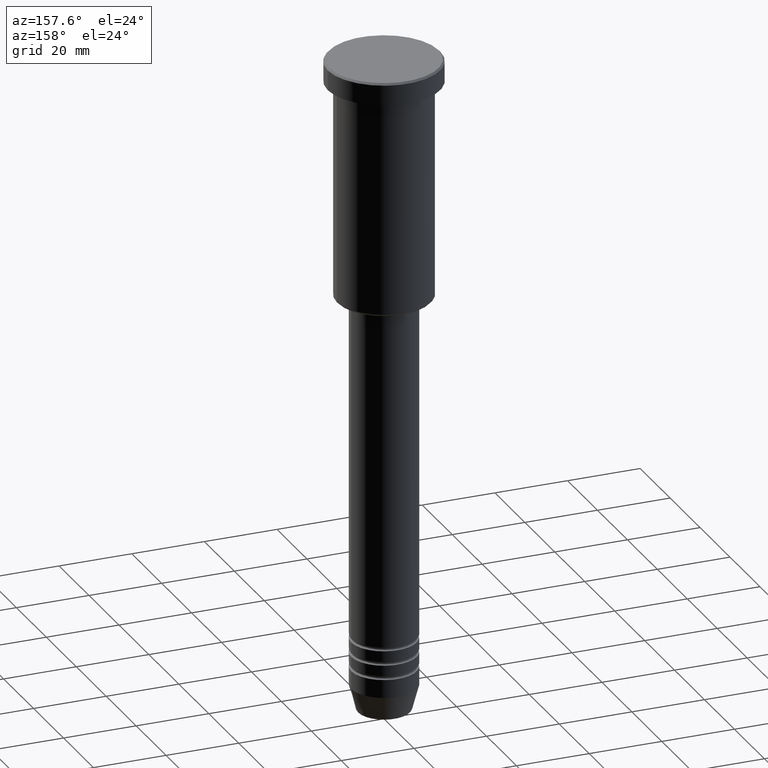
[diagram: clean part render]
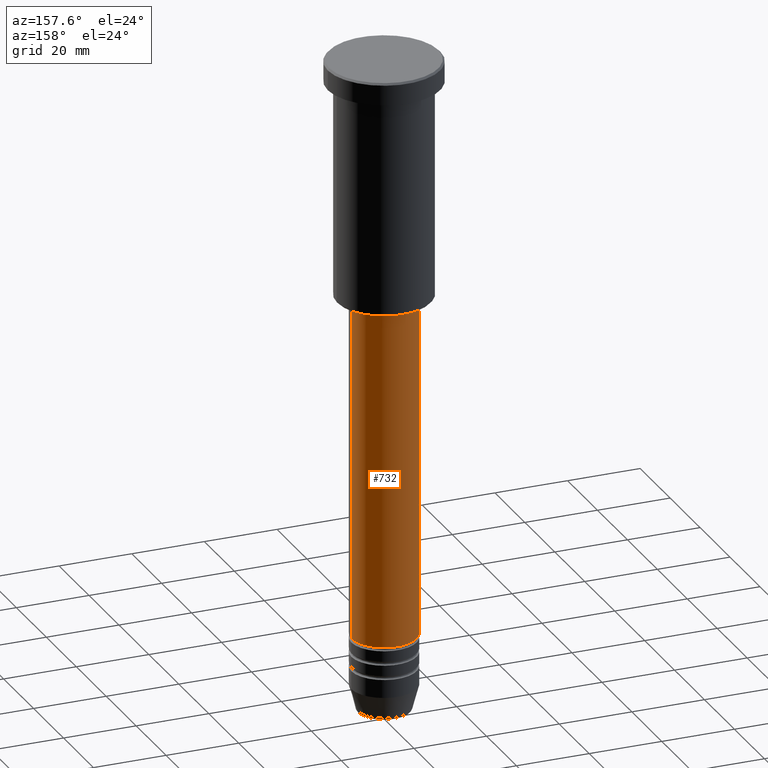
[diagram: same view with one face highlighted and labeled with its STEP entity id]
A machine part, auxiliary view. The second image highlights one B-rep face of the part: STEP entity #732.
In plain terms, the highlighted cylindrical surface (edge-blend (fillet) strip) has radius 9 mm, axis along (-0, -0, 1).
Its self-contained STEP definition (entity closure, byte-faithful):
#87 = EDGE_CURVE ( 'NONE', #152, #1106, #275, .T. ) ;
#88 = DIRECTION ( 'NONE',  ( 1.000000000000000000, 0.000000000000000000, 0.000000000000000000 ) ) ;
#143 = EDGE_CURVE ( 'NONE', #180, #924, #1005, .T. ) ;
#152 = VERTEX_POINT ( 'NONE', #403 ) ;
#154 = ORIENTED_EDGE ( 'NONE', *, *, #87, .F. ) ;
#156 = AXIS2_PLACEMENT_3D ( 'NONE', #1122, #286, #915 ) ;
#177 = CARTESIAN_POINT ( 'NONE',  ( 0.000000000000000000, 0.000000000000000000, -159.9999999999998579 ) ) ;
#180 = VERTEX_POINT ( 'NONE', #213 ) ;
#195 = CYLINDRICAL_SURFACE ( 'NONE', #864, 9.000000000000000000 ) ;
#213 = CARTESIAN_POINT ( 'NONE',  ( -9.000000000000001776, 1.102182119232617911E-15, -159.9999999999998579 ) ) ;
#219 = DIRECTION ( 'NONE',  ( -0.000000000000000000, -0.000000000000000000, 1.000000000000000000 ) ) ;
#223 = EDGE_CURVE ( 'NONE', #1106, #924, #558, .T. ) ;
#272 = CIRCLE ( 'NONE', #932, 9.000000000000001776 ) ;
#275 = LINE ( 'NONE', #992, #319 ) ;
#286 = DIRECTION ( 'NONE',  ( -0.000000000000000000, -0.000000000000000000, 1.000000000000000000 ) ) ;
#304 = CARTESIAN_POINT ( 'NONE',  ( -8.999999999999998224, 1.102182119232617714E-15, -66.99999999999997158 ) ) ;
#319 = VECTOR ( 'NONE', #804, 1000.000000000000000 ) ;
#403 = CARTESIAN_POINT ( 'NONE',  ( 9.000000000000001776, 0.000000000000000000, -159.9999999999998579 ) ) ;
#481 = EDGE_CURVE ( 'NONE', #152, #180, #272, .T. ) ;
#557 = VECTOR ( 'NONE', #219, 1000.000000000000000 ) ;
#558 = CIRCLE ( 'NONE', #156, 8.999999999999998224 ) ;
#715 = FACE_OUTER_BOUND ( 'NONE', #983, .T. ) ;
#732 = ADVANCED_FACE ( 'NONE', ( #715 ), #195, .T. ) ;
#738 = CARTESIAN_POINT ( 'NONE',  ( -9.000000000000000000, 1.102182119232617714E-15, 0.000000000000000000 ) ) ;
#804 = DIRECTION ( 'NONE',  ( -0.000000000000000000, -0.000000000000000000, 1.000000000000000000 ) ) ;
#864 = AXIS2_PLACEMENT_3D ( 'NONE', #990, #997, #1101 ) ;
#906 = ORIENTED_EDGE ( 'NONE', *, *, #481, .T. ) ;
#915 = DIRECTION ( 'NONE',  ( 1.000000000000000000, 0.000000000000000000, 0.000000000000000000 ) ) ;
#924 = VERTEX_POINT ( 'NONE', #304 ) ;
#929 = ORIENTED_EDGE ( 'NONE', *, *, #143, .T. ) ;
#931 = ORIENTED_EDGE ( 'NONE', *, *, #223, .F. ) ;
#932 = AXIS2_PLACEMENT_3D ( 'NONE', #177, #1082, #88 ) ;
#953 = CARTESIAN_POINT ( 'NONE',  ( 8.999999999999998224, 0.000000000000000000, -66.99999999999997158 ) ) ;
#983 = EDGE_LOOP ( 'NONE', ( #906, #929, #931, #154 ) ) ;
#990 = CARTESIAN_POINT ( 'NONE',  ( 0.000000000000000000, 0.000000000000000000, 0.000000000000000000 ) ) ;
#992 = CARTESIAN_POINT ( 'NONE',  ( 9.000000000000000000, 0.000000000000000000, 0.000000000000000000 ) ) ;
#997 = DIRECTION ( 'NONE',  ( -0.000000000000000000, -0.000000000000000000, 1.000000000000000000 ) ) ;
#1005 = LINE ( 'NONE', #738, #557 ) ;
#1082 = DIRECTION ( 'NONE',  ( -0.000000000000000000, -0.000000000000000000, 1.000000000000000000 ) ) ;
#1101 = DIRECTION ( 'NONE',  ( 1.000000000000000000, 0.000000000000000000, 0.000000000000000000 ) ) ;
#1106 = VERTEX_POINT ( 'NONE', #953 ) ;
#1122 = CARTESIAN_POINT ( 'NONE',  ( 0.000000000000000000, 0.000000000000000000, -66.99999999999997158 ) ) ;